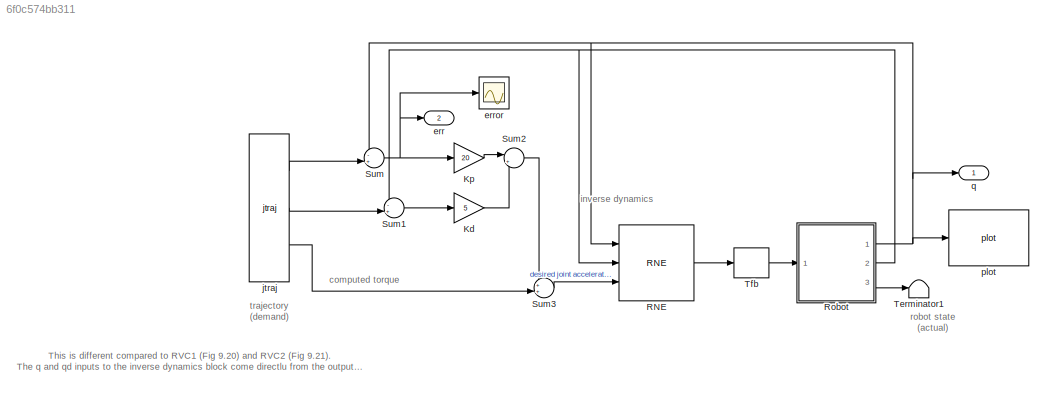
MODEL slx_6f0c574bb311
KIND model
CONFIG AbsTol = auto
CONFIG FixedStep = 0.01
CONFIG MaxStep = 0.05
CONFIG MinStep = auto
CONFIG PreLoadFcn = mdl_puma560
CONFIG RelTol = 1e-3
CONFIG SampleTimeConstraint = Unconstrained
CONFIG Solver = ode23t
CONFIG SolverMode = Auto
CONFIG SolverName = ode23t
CONFIG StartTime = 0.0
CONFIG StopTime = 5
BLOCK [Gain] Kd
  Gain = 5
BLOCK [Gain] Kp
  Gain = 20
BLOCK [Reference] RNE  REF=roblocks/Arm/RNE  (lib defined in mdl_2a292b13c81b, mdl_69400f8cfe22, +12 more)
  Ports = [3, 1]
  SourceBlock = roblocks/Arm/RNE
  grav = [0 0 9.81]
  robot = p560
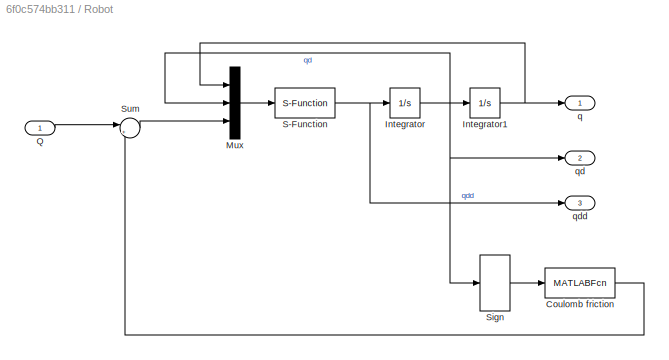
BLOCK [SubSystem] Robot
  AncestorBlock = roblocks/Arm/Robot
  Ports = [1, 3]
  RequestExecContextInheritance = off
BLOCK [MATLABFcn] Robot/Coulomb friction
  MATLABFcn = slcoulomb(robot,u)
  Output1D = off
  OutputDimensions = [robot.n 1]
  Ports = [1, 1]
BLOCK [Integrator] Robot/Integrator
  Ports = [1, 1]
BLOCK [Integrator] Robot/Integrator1
  InitialCondition = q0
  Ports = [1, 1]
BLOCK [Mux] Robot/Mux
  DisplayOption = bar
  Inputs = 3
  Ports = [3, 1]
BLOCK [Inport] Robot/Q
  IconDisplay = Port number
BLOCK [S-Function] Robot/S-Function
  EnableBusSupport = off
  FunctionName = slaccel
  Parameters = robot
  Ports = [1, 1]
  SFunctionDeploymentMode = off
BLOCK [Signum] Robot/Sign
BLOCK [Sum] Robot/Sum
  IconShape = round
  InputSameDT = off
  Inputs = |+-
  OutDataTypeStr = Inherit: Inherit via internal rule
  Ports = [2, 1]
  SaturateOnIntegerOverflow = off
BLOCK [Outport] Robot/q
  IconDisplay = Port number
BLOCK [Outport] Robot/qd
  IconDisplay = Port number
  Port = 2
BLOCK [Outport] Robot/qdd
  IconDisplay = Port number
  Port = 3
BLOCK [Sum] Sum
  IconShape = round
  Inputs = -+|
  Ports = [2, 1]
BLOCK [Sum] Sum1
  IconShape = round
  Inputs = -+|
  Ports = [2, 1]
BLOCK [Sum] Sum2
  IconShape = round
  Inputs = |++
  Ports = [2, 1]
BLOCK [Sum] Sum3
  IconShape = round
  Inputs = ++|
  Ports = [2, 1]
BLOCK [Terminator] Terminator1
BLOCK [ZeroOrderHold] Tfb
  SampleTime = 0.005
BLOCK [Outport] err
  IconDisplay = Port number
  Port = 2
BLOCK [Scope] error
  DataFormat = StructureWithTime
  Decimation = 1
  Floating = off
  Grid = on
  LimitDataPoints = off
  MaxDataPoints = 5000
  NumInputPorts = 1
  Ports = [1]
  SampleInput = off
  SampleTime = -1
  SaveName = ScopeData1
  SaveToWorkspace = off
  ShowLegends = off
  TickLabels = OneTimeTick
  TimeRange = auto
  YMax = 0.0000019
  YMin = -0.0000019
  ZoomMode = on
BLOCK [Reference] jtraj  REF=roblocks/Toolbox/jtraj  (lib defined in mdl_2a292b13c81b, mdl_69400f8cfe22, +12 more)
  Ports = [0, 3]
  SourceBlock = roblocks/Toolbox/jtraj
  q0 = [0 0 0 0 0 0]
  qf = [pi/4 pi/2 -pi/2 0 0 0]
  tmax = 5
  ts = -1
BLOCK [Reference] plot  REF=roblocks/Arm/plot  (lib defined in mdl_2a292b13c81b, mdl_69400f8cfe22, +12 more)
  Ports = [1]
  SourceBlock = roblocks/Arm/plot
  fps = 10
  holdplot = on
  robot = p560
BLOCK [Outport] q
  IconDisplay = Port number
ANNOTATION (root): robot state (actual)
ANNOTATION (root): trajectory ( demand )
ANNOTATION (root): This is different compared to RVC1 (Fig 9.20) and RVC2 (Fig 9.21). The q and qd inputs to the inverse dynamics block come directlu from the outputs of the robot model.
ANNOTATION (root): computed torque
ANNOTATION (root): inverse dynamics
LINE Kd:1 -> Sum2:2
LINE Kp:1 -> Sum2:1
LINE RNE:1 -> Tfb:1
NET Robot:1 -> RNE:1, Sum:1, plot:1, q:1
NET Robot:2 -> RNE:2, Sum1:1
LINE Robot:3 -> Terminator1:1
LINE Sum1:1 -> Kd:1
LINE Sum2:1 -> Sum3:1
LINE Sum3:1 -> RNE:3
NET Sum:1 -> Kp:1, err:1, error:1
LINE Tfb:1 -> Robot:1
LINE jtraj:1 -> Sum:2
LINE jtraj:2 -> Sum1:2
LINE jtraj:3 -> Sum3:2
note: NET lines group one-source signal fan-out (src -> all destinations, sorted); 1:1 wires keep LINE
